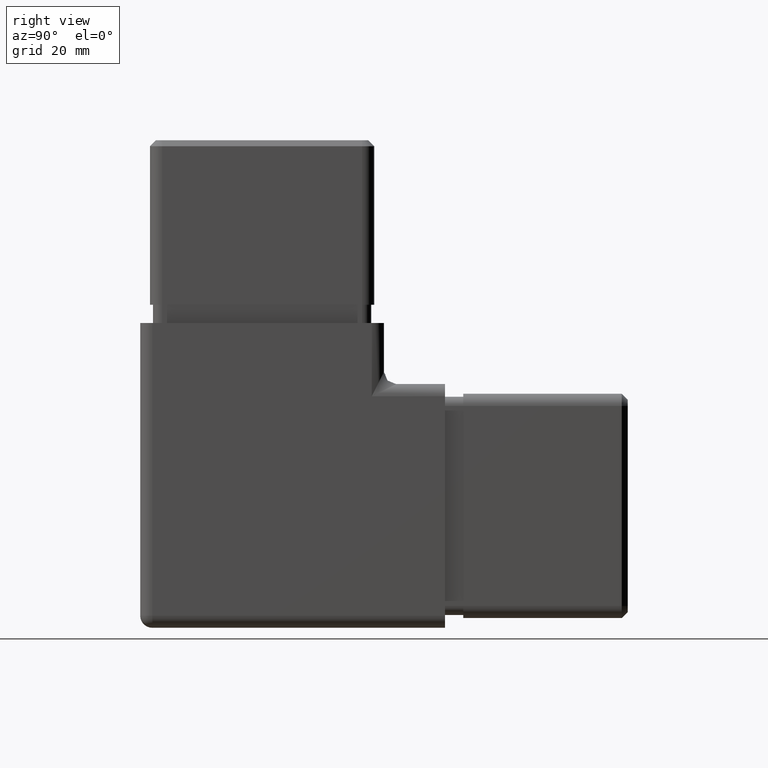
[diagram: clean part render]
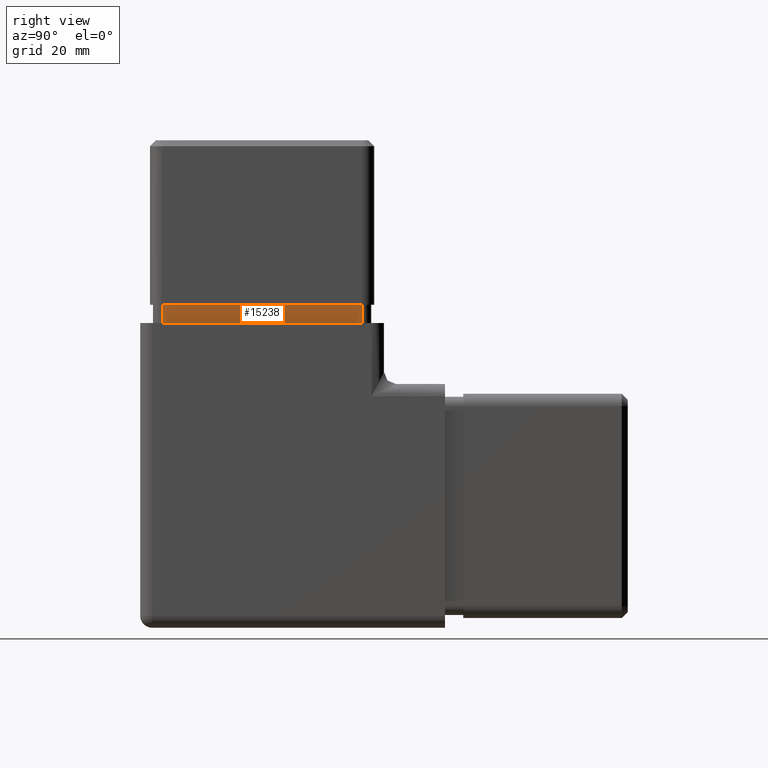
[diagram: same view with one face highlighted and labeled with its STEP entity id]
A machine part, right view. The second image highlights one B-rep face of the part: STEP entity #15238.
In plain terms, the highlighted planar face has unit normal (-1, -0, 0).
Its self-contained STEP definition (entity closure, byte-faithful):
#411 = CARTESIAN_POINT ( 'NONE',  ( 17.90000000000000568, 3.600000000000005862, 53.00000000000000711 ) ) ;
#772 = EDGE_CURVE ( 'NONE', #10950, #12578, #12430, .T. ) ;
#783 = EDGE_LOOP ( 'NONE', ( #18936, #19459, #5908, #9402 ) ) ;
#1141 = CARTESIAN_POINT ( 'NONE',  ( 17.90000000000000213, 36.39999999999999147, 53.00000000000000711 ) ) ;
#1295 = DIRECTION ( 'NONE',  ( 2.115516434118058695E-16, -1.000000000000000000, 0.000000000000000000 ) ) ;
#2169 = VECTOR ( 'NONE', #15278, 1000.000000000000000 ) ;
#2612 = LINE ( 'NONE', #19760, #18993 ) ;
#3110 = CARTESIAN_POINT ( 'NONE',  ( 17.89999999999999858, 36.39999999999999147, 53.00000000000000711 ) ) ;
#4611 = CARTESIAN_POINT ( 'NONE',  ( 17.90000000000000568, 36.39999999999999147, 50.00000000000000000 ) ) ;
#5724 = CARTESIAN_POINT ( 'NONE',  ( 17.90000000000000568, 3.600000000000002309, 53.00000000000000711 ) ) ;
#5908 = ORIENTED_EDGE ( 'NONE', *, *, #20207, .T. ) ;
#5938 = CARTESIAN_POINT ( 'NONE',  ( 17.90000000000000568, 3.600000000000005862, 50.00000000000000000 ) ) ;
#6084 = VECTOR ( 'NONE', #16669, 1000.000000000000000 ) ;
#6343 = LINE ( 'NONE', #18285, #2169 ) ;
#7333 = DIRECTION ( 'NONE',  ( 2.115516434118058695E-16, -1.000000000000000000, -0.000000000000000000 ) ) ;
#8374 = VECTOR ( 'NONE', #15185, 1000.000000000000000 ) ;
#8867 = LINE ( 'NONE', #1141, #8374 ) ;
#9402 = ORIENTED_EDGE ( 'NONE', *, *, #772, .T. ) ;
#9520 = CARTESIAN_POINT ( 'NONE',  ( 17.90000000000000568, 36.39999999999999147, 53.00000000000000711 ) ) ;
#10950 = VERTEX_POINT ( 'NONE', #411 ) ;
#12289 = FACE_OUTER_BOUND ( 'NONE', #783, .T. ) ;
#12430 = LINE ( 'NONE', #5724, #6084 ) ;
#12578 = VERTEX_POINT ( 'NONE', #5938 ) ;
#15185 = DIRECTION ( 'NONE',  ( 0.000000000000000000, 0.000000000000000000, -1.000000000000000000 ) ) ;
#15238 = ADVANCED_FACE ( 'NONE', ( #12289 ), #16675, .F. ) ;
#15278 = DIRECTION ( 'NONE',  ( 2.115516434118058695E-16, -1.000000000000000000, -0.000000000000000000 ) ) ;
#15676 = EDGE_CURVE ( 'NONE', #15834, #19406, #8867, .T. ) ;
#15834 = VERTEX_POINT ( 'NONE', #9520 ) ;
#16669 = DIRECTION ( 'NONE',  ( 0.000000000000000000, 0.000000000000000000, -1.000000000000000000 ) ) ;
#16675 = PLANE ( 'NONE',  #20313 ) ;
#17944 = EDGE_CURVE ( 'NONE', #19406, #12578, #6343, .T. ) ;
#18285 = CARTESIAN_POINT ( 'NONE',  ( 17.89999999999999858, 36.39999999999999147, 50.00000000000000000 ) ) ;
#18936 = ORIENTED_EDGE ( 'NONE', *, *, #17944, .F. ) ;
#18993 = VECTOR ( 'NONE', #7333, 1000.000000000000000 ) ;
#19406 = VERTEX_POINT ( 'NONE', #4611 ) ;
#19459 = ORIENTED_EDGE ( 'NONE', *, *, #15676, .F. ) ;
#19760 = CARTESIAN_POINT ( 'NONE',  ( 17.89999999999999858, 36.39999999999999147, 53.00000000000000711 ) ) ;
#20171 = DIRECTION ( 'NONE',  ( -1.000000000000000000, -2.115516434118058695E-16, 0.000000000000000000 ) ) ;
#20207 = EDGE_CURVE ( 'NONE', #15834, #10950, #2612, .T. ) ;
#20313 = AXIS2_PLACEMENT_3D ( 'NONE', #3110, #20171, #1295 ) ;